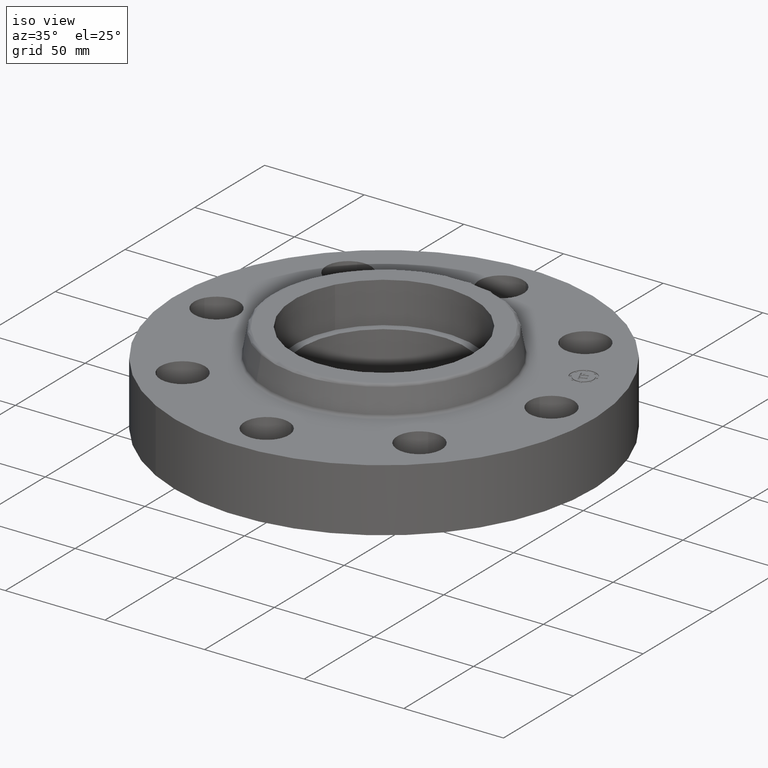
[diagram: clean part render]
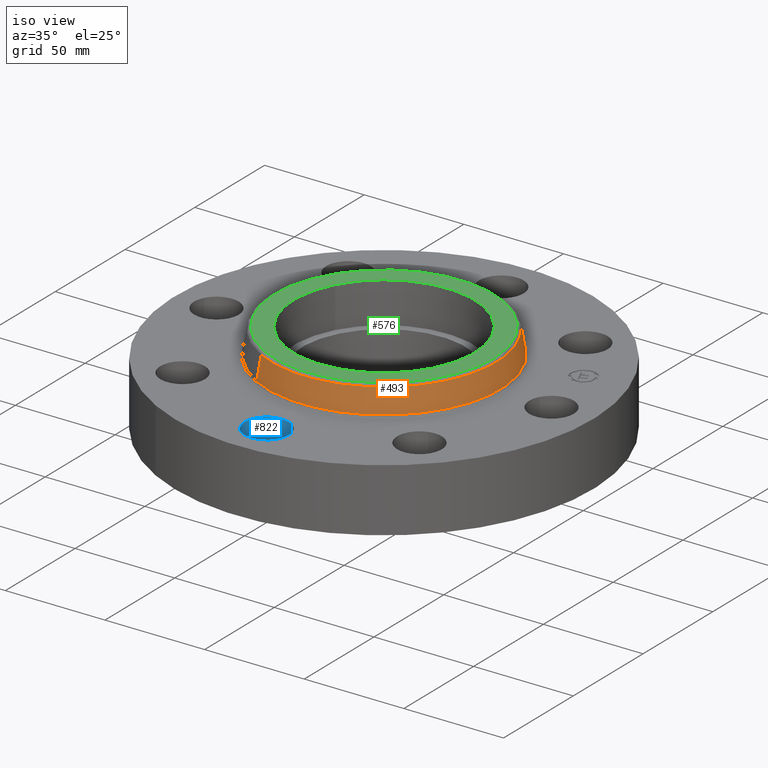
[diagram: same view with three faces highlighted in distinct colors, each labeled with its STEP entity id]
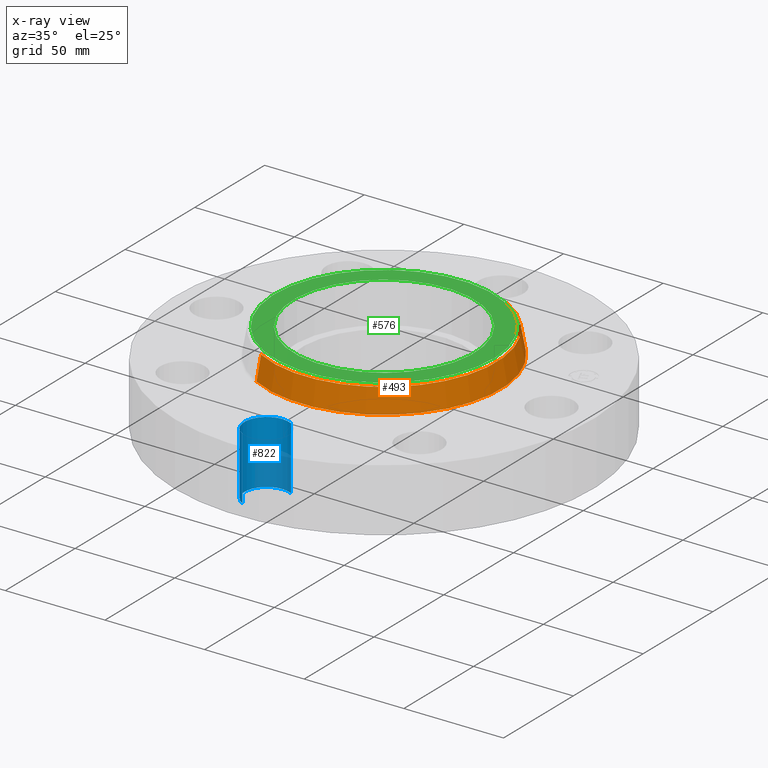
[diagram: x-ray of the same camera — body ghosted, the three highlighted faces saturated]
A machine part, iso view with three faces highlighted in distinct colors.
The next image is the same camera in x-ray (body ghosted, the three faces saturated) — at least one of them is partly hidden behind the body in this view.
Their STEP definitions:

[orange] entity #493 — the highlighted conical surface has half-angle 10 deg.
#429=AXIS2_PLACEMENT_3D('Circle Axis2P3D',#427,#428,$) ;
#466=AXIS2_PLACEMENT_3D('Cone Axis2P3D',#463,#464,#465) ;
#477=AXIS2_PLACEMENT_3D('Circle Axis2P3D',#475,#476,$) ;
#424=CARTESIAN_POINT('Vertex',(1.10328162249,2.01954346356,1.29958110935)) ;
#427=CARTESIAN_POINT('Axis2P3D Location',(0.,0.,1.29958110935)) ;
#431=CARTESIAN_POINT('Vertex',(-1.10328162249,-2.01954346356,1.29958110935)) ;
#463=CARTESIAN_POINT('Axis2P3D Location',(0.,0.,1.76041889067)) ;
#468=CARTESIAN_POINT('Line Origine',(1.08380301002,1.98388810261,1.53000000001)) ;
#472=CARTESIAN_POINT('Vertex',(1.06432439756,1.94823274165,1.76041889067)) ;
#475=CARTESIAN_POINT('Axis2P3D Location',(0.,0.,1.76041889067)) ;
#479=CARTESIAN_POINT('Vertex',(-1.06432439756,-1.94823274165,1.76041889067)) ;
#482=CARTESIAN_POINT('Line Origine',(-1.08380301002,-1.98388810261,1.53000000001)) ;
#428=DIRECTION('Axis2P3D Direction',(0.,0.,-0.0393700787402)) ;
#464=DIRECTION('Axis2P3D Direction',(0.,0.,-0.0393700787402)) ;
#465=DIRECTION('Axis2P3D XDirection',(-0.0188750212049,-0.0345504945626,0.)) ;
#469=DIRECTION('Vector Direction',(0.00327761303565,0.00599963041829,-0.03877195878)) ;
#476=DIRECTION('Axis2P3D Direction',(0.,0.,-0.0393700787402)) ;
#483=DIRECTION('Vector Direction',(-0.00327761303565,-0.00599963041829,-0.03877195878)) ;
#470=VECTOR('Line Direction',#469,0.0393700787402) ;
#484=VECTOR('Line Direction',#483,0.0393700787402) ;
#488=ORIENTED_EDGE('',*,*,#433,.F.) ;
#489=ORIENTED_EDGE('',*,*,#474,.T.) ;
#490=ORIENTED_EDGE('',*,*,#481,.T.) ;
#491=ORIENTED_EDGE('',*,*,#486,.F.) ;
#493=ADVANCED_FACE('PartBody',(#492),#467,.T.) ;
#430=CIRCLE('generated circle',#429,2.3012575127) ;
#478=CIRCLE('generated circle',#477,2.21999937812) ;
#467=CONICAL_SURFACE('Cone',#466,2.21999937812,0.174532925199) ;
#433=EDGE_CURVE('',#425,#432,#430,.T.) ;
#474=EDGE_CURVE('',#425,#473,#471,.F.) ;
#481=EDGE_CURVE('',#473,#480,#478,.T.) ;
#486=EDGE_CURVE('',#432,#480,#485,.F.) ;
#487=EDGE_LOOP('',(#488,#489,#490,#491)) ;
#492=FACE_OUTER_BOUND('',#487,.T.) ;
#471=LINE('Line',#468,#470) ;
#485=LINE('Line',#482,#484) ;
#425=VERTEX_POINT('',#424) ;
#432=VERTEX_POINT('',#431) ;
#473=VERTEX_POINT('',#472) ;
#480=VERTEX_POINT('',#479) ;

[blue] entity #822 — the highlighted cylindrical surface (edge-blend (fillet) strip) has radius 11.176 mm, axis along (0, -0, -1).
#265=AXIS2_PLACEMENT_3D('Circle Axis2P3D',#263,#264,$) ;
#795=AXIS2_PLACEMENT_3D('Cylinder Axis2P3D',#792,#793,#794) ;
#813=AXIS2_PLACEMENT_3D('Circle Axis2P3D',#811,#812,$) ;
#258=CARTESIAN_POINT('Vertex',(0.210947236987,-2.92386367278,0.)) ;
#260=CARTESIAN_POINT('Vertex',(-0.210947236987,-3.69613632725,0.)) ;
#263=CARTESIAN_POINT('Axis2P3D Location',(-5.24514814784E-016,-3.31000000001,0.)) ;
#792=CARTESIAN_POINT('Axis2P3D Location',(-3.56803423843E-016,-3.31000000001,1.24606299213)) ;
#797=CARTESIAN_POINT('Line Origine',(-0.210947236987,-3.69613632725,0.625000000003)) ;
#801=CARTESIAN_POINT('Vertex',(-0.210947236987,-3.69613632725,1.25000000001)) ;
#804=CARTESIAN_POINT('Line Origine',(0.210947236987,-2.92386367278,0.625000000003)) ;
#808=CARTESIAN_POINT('Vertex',(0.210947236987,-2.92386367278,1.25000000001)) ;
#811=CARTESIAN_POINT('Axis2P3D Location',(-3.56803423843E-016,-3.31000000001,1.25000000001)) ;
#264=DIRECTION('Axis2P3D Direction',(0.,0.,-0.0393700787402)) ;
#793=DIRECTION('Axis2P3D Direction',(0.,-0.,-0.0393700787402)) ;
#794=DIRECTION('Axis2P3D XDirection',(0.0188750212049,0.0345504945626,-0.)) ;
#798=DIRECTION('Vector Direction',(0.,0.,-0.0393700787402)) ;
#805=DIRECTION('Vector Direction',(0.,0.,-0.0393700787402)) ;
#812=DIRECTION('Axis2P3D Direction',(0.,-0.,-0.0393700787402)) ;
#799=VECTOR('Line Direction',#798,0.0393700787402) ;
#806=VECTOR('Line Direction',#805,0.0393700787402) ;
#817=ORIENTED_EDGE('',*,*,#803,.F.) ;
#818=ORIENTED_EDGE('',*,*,#267,.T.) ;
#819=ORIENTED_EDGE('',*,*,#810,.T.) ;
#820=ORIENTED_EDGE('',*,*,#815,.F.) ;
#822=ADVANCED_FACE('PartBody',(#821),#796,.F.) ;
#266=CIRCLE('generated circle',#265,0.440000000002) ;
#814=CIRCLE('generated circle',#813,0.440000000002) ;
#796=CYLINDRICAL_SURFACE('generated cylinder',#795,0.440000000002) ;
#267=EDGE_CURVE('',#261,#259,#266,.T.) ;
#803=EDGE_CURVE('',#261,#802,#800,.F.) ;
#810=EDGE_CURVE('',#259,#809,#807,.F.) ;
#815=EDGE_CURVE('',#802,#809,#814,.T.) ;
#816=EDGE_LOOP('',(#817,#818,#819,#820)) ;
#821=FACE_OUTER_BOUND('',#816,.T.) ;
#800=LINE('Line',#797,#799) ;
#807=LINE('Line',#804,#806) ;
#259=VERTEX_POINT('',#258) ;
#261=VERTEX_POINT('',#260) ;
#802=VERTEX_POINT('',#801) ;
#809=VERTEX_POINT('',#808) ;

[green] entity #576 — the highlighted planar face has unit normal (0, 0, -1).
#520=AXIS2_PLACEMENT_3D('Circle Axis2P3D',#518,#519,$) ;
#539=AXIS2_PLACEMENT_3D('Circle Axis2P3D',#537,#538,$) ;
#552=AXIS2_PLACEMENT_3D('Plane Axis2P3D',#549,#550,#551) ;
#560=AXIS2_PLACEMENT_3D('Circle Axis2P3D',#558,#559,$) ;
#569=AXIS2_PLACEMENT_3D('Circle Axis2P3D',#567,#568,$) ;
#515=CARTESIAN_POINT('Vertex',(1.03599587831,1.896377735,1.81000000001)) ;
#518=CARTESIAN_POINT('Axis2P3D Location',(0.,0.,1.81000000001)) ;
#522=CARTESIAN_POINT('Vertex',(-1.03599587831,-1.896377735,1.81000000001)) ;
#537=CARTESIAN_POINT('Axis2P3D Location',(0.,0.,1.81000000001)) ;
#549=CARTESIAN_POINT('Axis2P3D Location',(0.,2.16091091294,1.81000000001)) ;
#558=CARTESIAN_POINT('Axis2P3D Location',(-1.39870617276E-016,8.39223703654E-016,1.81000000001)) ;
#562=CARTESIAN_POINT('Vertex',(-1.56648487298,0.855774586412,1.81000000001)) ;
#564=CARTESIAN_POINT('Vertex',(1.56648487298,-0.855774586412,1.81000000001)) ;
#567=CARTESIAN_POINT('Axis2P3D Location',(0.,1.1189649382E-015,1.81000000001)) ;
#519=DIRECTION('Axis2P3D Direction',(0.,0.,-0.0393700787402)) ;
#538=DIRECTION('Axis2P3D Direction',(0.,0.,-0.0393700787402)) ;
#550=DIRECTION('Axis2P3D Direction',(0.,0.,-0.0393700787402)) ;
#551=DIRECTION('Axis2P3D XDirection',(0.0393700787402,0.,0.)) ;
#559=DIRECTION('Axis2P3D Direction',(0.,0.,-0.0393700787402)) ;
#568=DIRECTION('Axis2P3D Direction',(0.,0.,-0.0393700787402)) ;
#555=ORIENTED_EDGE('',*,*,#524,.F.) ;
#556=ORIENTED_EDGE('',*,*,#541,.F.) ;
#573=ORIENTED_EDGE('',*,*,#566,.T.) ;
#574=ORIENTED_EDGE('',*,*,#571,.T.) ;
#575=FACE_BOUND('',#572,.T.) ;
#576=ADVANCED_FACE('PartBody',(#557,#575),#553,.F.) ;
#521=CIRCLE('generated circle',#520,2.16091091294) ;
#540=CIRCLE('generated circle',#539,2.16091091294) ;
#561=CIRCLE('generated circle',#560,1.78500000001) ;
#570=CIRCLE('generated circle',#569,1.78500000001) ;
#524=EDGE_CURVE('',#516,#523,#521,.T.) ;
#541=EDGE_CURVE('',#523,#516,#540,.T.) ;
#566=EDGE_CURVE('',#563,#565,#561,.T.) ;
#571=EDGE_CURVE('',#565,#563,#570,.T.) ;
#554=EDGE_LOOP('',(#555,#556)) ;
#572=EDGE_LOOP('',(#573,#574)) ;
#557=FACE_OUTER_BOUND('',#554,.T.) ;
#553=PLANE('',#552) ;
#516=VERTEX_POINT('',#515) ;
#523=VERTEX_POINT('',#522) ;
#563=VERTEX_POINT('',#562) ;
#565=VERTEX_POINT('',#564) ;